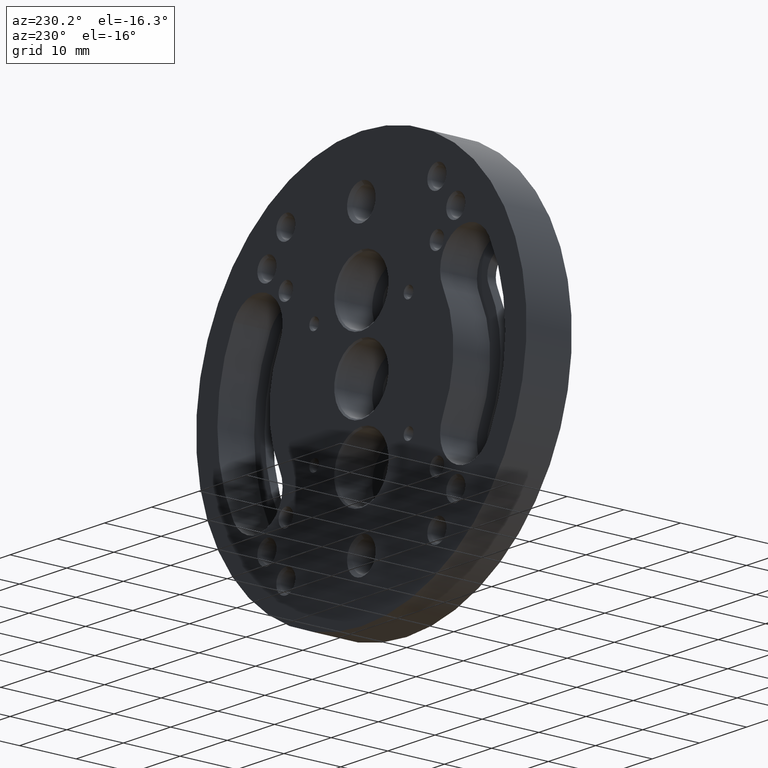
[diagram: clean part render]
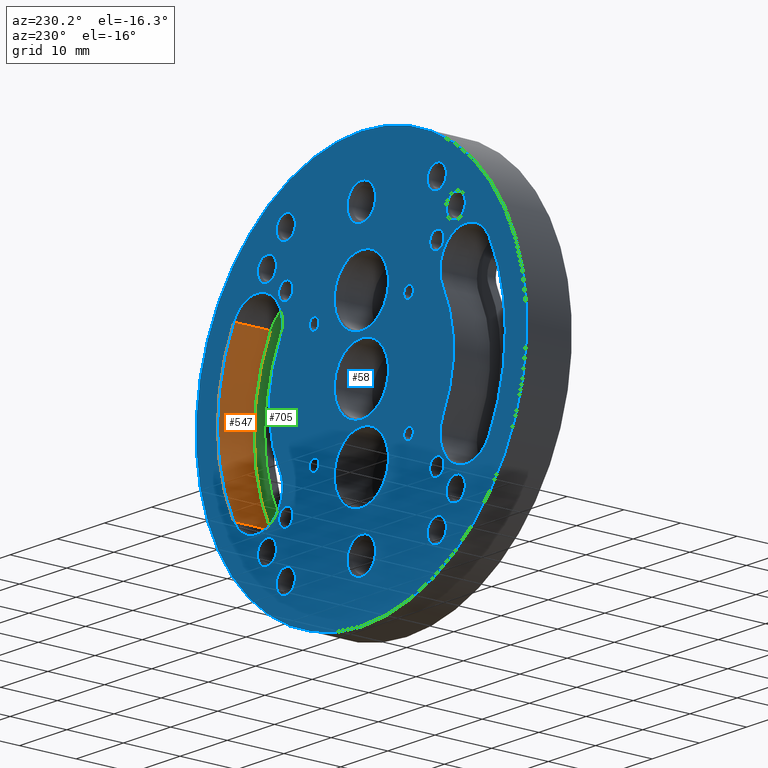
[diagram: same view with three faces highlighted in distinct colors, each labeled with its STEP entity id]
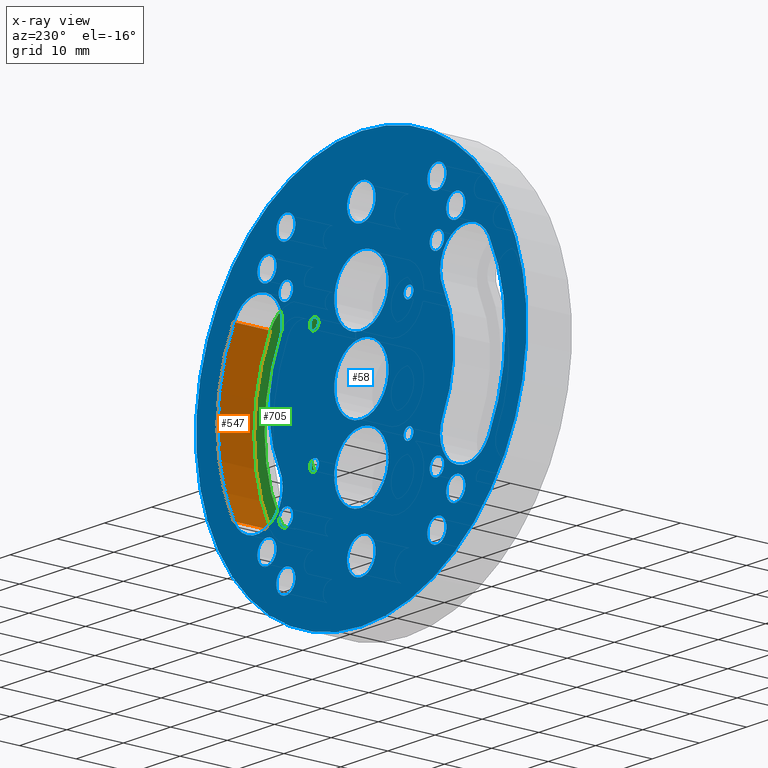
[diagram: x-ray of the same camera — body ghosted, the three highlighted faces saturated]
A machine part, auxiliary view with three faces highlighted in distinct colors.
The next image is the same camera in x-ray (body ghosted, the three faces saturated) — at least one of them is partly hidden behind the body in this view.
Their STEP definitions:

[orange] entity #547 — the highlighted cylindrical surface (partial cylindrical patch) has radius 30.5 mm, axis along (-0, 1, -0).
#191 = EDGE_CURVE ( 'NONE', #818, #650, #985, .T. ) ;
#228 = ORIENTED_EDGE ( 'NONE', *, *, #433, .F. ) ;
#268 = AXIS2_PLACEMENT_3D ( 'NONE', #649, #820, #325 ) ;
#278 = ORIENTED_EDGE ( 'NONE', *, *, #191, .T. ) ;
#325 = DIRECTION ( 'NONE',  ( 0.000000000000000000, 0.000000000000000000, 1.000000000000000000 ) ) ;
#387 = CARTESIAN_POINT ( 'NONE',  ( 27.05383041193573135, 8.000000000000000000, 14.08333270366857093 ) ) ;
#390 = EDGE_CURVE ( 'NONE', #650, #786, #1182, .T. ) ;
#398 = DIRECTION ( 'NONE',  ( -0.000000000000000000, 1.000000000000000000, -0.000000000000000000 ) ) ;
#433 = EDGE_CURVE ( 'NONE', #818, #1414, #1898, .T. ) ;
#542 = FACE_OUTER_BOUND ( 'NONE', #1151, .T. ) ;
#547 = ADVANCED_FACE ( 'NONE', ( #542 ), #1764, .F. ) ;
#552 = DIRECTION ( 'NONE',  ( 0.000000000000000000, 0.000000000000000000, 1.000000000000000000 ) ) ;
#612 = CARTESIAN_POINT ( 'NONE',  ( 27.05383041193573135, 1.500000000000000444, -14.08333270366857448 ) ) ;
#649 = CARTESIAN_POINT ( 'NONE',  ( 0.000000000000000000, 8.000000000000000000, 0.000000000000000000 ) ) ;
#650 = VERTEX_POINT ( 'NONE', #387 ) ;
#669 = DIRECTION ( 'NONE',  ( 0.000000000000000000, 0.000000000000000000, 1.000000000000000000 ) ) ;
#786 = VERTEX_POINT ( 'NONE', #1824 ) ;
#794 = EDGE_CURVE ( 'NONE', #1414, #786, #909, .T. ) ;
#818 = VERTEX_POINT ( 'NONE', #1413 ) ;
#820 = DIRECTION ( 'NONE',  ( 0.000000000000000000, 1.000000000000000000, 0.000000000000000000 ) ) ;
#821 = ORIENTED_EDGE ( 'NONE', *, *, #794, .F. ) ;
#909 = LINE ( 'NONE', #612, #1849 ) ;
#914 = VECTOR ( 'NONE', #1284, 1000.000000000000000 ) ;
#985 = LINE ( 'NONE', #1114, #914 ) ;
#1114 = CARTESIAN_POINT ( 'NONE',  ( 27.05383041193573490, 1.500000000000000444, 14.08333270366857093 ) ) ;
#1151 = EDGE_LOOP ( 'NONE', ( #1457, #821, #228, #278 ) ) ;
#1154 = AXIS2_PLACEMENT_3D ( 'NONE', #1257, #1415, #669 ) ;
#1182 = CIRCLE ( 'NONE', #268, 30.49999999999999289 ) ;
#1257 = CARTESIAN_POINT ( 'NONE',  ( 0.000000000000000000, 1.500000000000000444, 0.000000000000000000 ) ) ;
#1284 = DIRECTION ( 'NONE',  ( -0.000000000000000000, 1.000000000000000000, -0.000000000000000000 ) ) ;
#1413 = CARTESIAN_POINT ( 'NONE',  ( 27.05383041193573490, 1.500000000000000444, 14.08333270366857093 ) ) ;
#1414 = VERTEX_POINT ( 'NONE', #1566 ) ;
#1415 = DIRECTION ( 'NONE',  ( 0.000000000000000000, 1.000000000000000000, 0.000000000000000000 ) ) ;
#1457 = ORIENTED_EDGE ( 'NONE', *, *, #390, .T. ) ;
#1507 = DIRECTION ( 'NONE',  ( -0.000000000000000000, 1.000000000000000000, -0.000000000000000000 ) ) ;
#1566 = CARTESIAN_POINT ( 'NONE',  ( 27.05383041193573135, 1.500000000000000444, -14.08333270366857448 ) ) ;
#1747 = CARTESIAN_POINT ( 'NONE',  ( 0.000000000000000000, 1.500000000000000444, 0.000000000000000000 ) ) ;
#1764 = CYLINDRICAL_SURFACE ( 'NONE', #1765, 30.49999999999999289 ) ;
#1765 = AXIS2_PLACEMENT_3D ( 'NONE', #1747, #398, #552 ) ;
#1824 = CARTESIAN_POINT ( 'NONE',  ( 27.05383041193573135, 8.000000000000000000, -14.08333270366857448 ) ) ;
#1849 = VECTOR ( 'NONE', #1507, 1000.000000000000000 ) ;
#1898 = CIRCLE ( 'NONE', #1154, 30.49999999999999289 ) ;

[blue] entity #58 — the highlighted planar face has unit normal (0, 1, 0).
#5 = DIRECTION ( 'NONE',  ( 0.000000000000000000, 0.000000000000000000, 1.000000000000000000 ) ) ;
#8 = DIRECTION ( 'NONE',  ( 0.000000000000000000, 0.000000000000000000, 1.000000000000000000 ) ) ;
#10 = EDGE_LOOP ( 'NONE', ( #722 ) ) ;
#17 = CARTESIAN_POINT ( 'NONE',  ( -15.99999999999998934, 8.000000000000000000, 24.99999999999999645 ) ) ;
#44 = FACE_BOUND ( 'NONE', #423, .T. ) ;
#52 = VERTEX_POINT ( 'NONE', #1408 ) ;
#53 = FACE_BOUND ( 'NONE', #893, .T. ) ;
#58 = ADVANCED_FACE ( 'NONE', ( #928, #1251, #804, #321, #1399, #331, #1076, #181, #1368, #762, #1534, #172, #1873, #784, #1239, #44, #526, #259, #1565, #118, #53, #715, #725, #407 ), #1410, .T. ) ;
#59 = DIRECTION ( 'NONE',  ( 0.000000000000000000, 0.000000000000000000, 1.000000000000000000 ) ) ;
#72 = CARTESIAN_POINT ( 'NONE',  ( 16.00000000000000000, 8.000000000000000000, -22.97500000000000142 ) ) ;
#75 = AXIS2_PLACEMENT_3D ( 'NONE', #344, #961, #1584 ) ;
#76 = DIRECTION ( 'NONE',  ( -0.000000000000000000, 1.000000000000000000, -0.000000000000000000 ) ) ;
#80 = DIRECTION ( 'NONE',  ( -0.000000000000000000, 1.000000000000000000, -0.000000000000000000 ) ) ;
#84 = AXIS2_PLACEMENT_3D ( 'NONE', #835, #563, #964 ) ;
#90 = CIRCLE ( 'NONE', #1971, 2.024999999999999023 ) ;
#94 = VERTEX_POINT ( 'NONE', #212 ) ;
#98 = CIRCLE ( 'NONE', #897, 2.024999999999999023 ) ;
#102 = VERTEX_POINT ( 'NONE', #1046 ) ;
#118 = FACE_BOUND ( 'NONE', #1878, .T. ) ;
#129 = VERTEX_POINT ( 'NONE', #1456 ) ;
#136 = CIRCLE ( 'NONE', #1242, 2.024999999999999023 ) ;
#151 = EDGE_CURVE ( 'NONE', #52, #52, #460, .T. ) ;
#172 = FACE_BOUND ( 'NONE', #1880, .T. ) ;
#181 = FACE_BOUND ( 'NONE', #918, .T. ) ;
#183 = VERTEX_POINT ( 'NONE', #1020 ) ;
#187 = ORIENTED_EDGE ( 'NONE', *, *, #1219, .F. ) ;
#207 = EDGE_LOOP ( 'NONE', ( #1723 ) ) ;
#208 = DIRECTION ( 'NONE',  ( 0.000000000000000000, 1.000000000000000000, 0.000000000000000000 ) ) ;
#212 = CARTESIAN_POINT ( 'NONE',  ( -9.999999999999998224, 8.000000000000000000, 11.02499999999999858 ) ) ;
#216 = DIRECTION ( 'NONE',  ( 0.000000000000000000, 0.000000000000000000, 1.000000000000000000 ) ) ;
#229 = CARTESIAN_POINT ( 'NONE',  ( 10.00000000000000000, 8.000000000000000000, -8.975000000000001421 ) ) ;
#231 = EDGE_CURVE ( 'NONE', #589, #451, #688, .T. ) ;
#247 = ORIENTED_EDGE ( 'NONE', *, *, #458, .F. ) ;
#248 = CIRCLE ( 'NONE', #372, 2.024999999999999023 ) ;
#258 = DIRECTION ( 'NONE',  ( -0.000000000000000000, -1.000000000000000000, -0.000000000000000000 ) ) ;
#259 = FACE_BOUND ( 'NONE', #1333, .T. ) ;
#268 = AXIS2_PLACEMENT_3D ( 'NONE', #649, #820, #325 ) ;
#286 = ORIENTED_EDGE ( 'NONE', *, *, #390, .F. ) ;
#291 = CARTESIAN_POINT ( 'NONE',  ( -16.00000000000000000, 8.000000000000000000, 15.99999999999999289 ) ) ;
#293 = EDGE_CURVE ( 'NONE', #841, #1537, #1127, .T. ) ;
#295 = DIRECTION ( 'NONE',  ( 0.000000000000000000, 0.000000000000000000, 1.000000000000000000 ) ) ;
#296 = DIRECTION ( 'NONE',  ( 0.000000000000000000, 0.000000000000000000, 1.000000000000000000 ) ) ;
#305 = CARTESIAN_POINT ( 'NONE',  ( 16.00000000000000000, 8.000000000000000000, 15.99999999999999289 ) ) ;
#321 = FACE_BOUND ( 'NONE', #1016, .T. ) ;
#325 = DIRECTION ( 'NONE',  ( 0.000000000000000000, 0.000000000000000000, 1.000000000000000000 ) ) ;
#326 = ORIENTED_EDGE ( 'NONE', *, *, #553, .F. ) ;
#327 = CIRCLE ( 'NONE', #1502, 5.500000000000000000 ) ;
#331 = FACE_BOUND ( 'NONE', #1931, .T. ) ;
#335 = DIRECTION ( 'NONE',  ( 0.000000000000000000, 1.000000000000000000, 0.000000000000000000 ) ) ;
#344 = CARTESIAN_POINT ( 'NONE',  ( -9.999999999999998224, 8.000000000000000000, 9.999999999999998224 ) ) ;
#347 = EDGE_CURVE ( 'NONE', #1147, #1147, #515, .T. ) ;
#372 = AXIS2_PLACEMENT_3D ( 'NONE', #17, #1704, #816 ) ;
#382 = EDGE_CURVE ( 'NONE', #786, #841, #1340, .T. ) ;
#384 = EDGE_CURVE ( 'NONE', #389, #389, #136, .T. ) ;
#387 = CARTESIAN_POINT ( 'NONE',  ( 27.05383041193573135, 8.000000000000000000, 14.08333270366857093 ) ) ;
#389 = VERTEX_POINT ( 'NONE', #700 ) ;
#390 = EDGE_CURVE ( 'NONE', #650, #786, #1182, .T. ) ;
#393 = CARTESIAN_POINT ( 'NONE',  ( -22.17527082945552053, 8.000000000000000000, -11.54371533087588020 ) ) ;
#396 = VERTEX_POINT ( 'NONE', #229 ) ;
#405 = CARTESIAN_POINT ( 'NONE',  ( 6.938893903907228378E-15, 8.000000000000000000, 28.02499999999999858 ) ) ;
#407 = FACE_BOUND ( 'NONE', #1524, .T. ) ;
#413 = CARTESIAN_POINT ( 'NONE',  ( -17.29671124697530615, 8.000000000000000000, 9.004097958083184139 ) ) ;
#415 = ORIENTED_EDGE ( 'NONE', *, *, #384, .F. ) ;
#423 = EDGE_LOOP ( 'NONE', ( #415 ) ) ;
#429 = CARTESIAN_POINT ( 'NONE',  ( 10.00000000000000000, 8.000000000000000000, -10.00000000000000178 ) ) ;
#431 = CARTESIAN_POINT ( 'NONE',  ( 19.99999999999998934, 8.000000000000000000, -20.00000000000000711 ) ) ;
#435 = CARTESIAN_POINT ( 'NONE',  ( 16.00000000000000000, 8.000000000000000000, -25.00000000000000000 ) ) ;
#444 = DIRECTION ( 'NONE',  ( 0.000000000000000000, 0.000000000000000000, 1.000000000000000000 ) ) ;
#445 = DIRECTION ( 'NONE',  ( 0.000000000000000000, 0.000000000000000000, 1.000000000000000000 ) ) ;
#451 = VERTEX_POINT ( 'NONE', #1099 ) ;
#458 = EDGE_CURVE ( 'NONE', #1537, #650, #327, .T. ) ;
#460 = CIRCLE ( 'NONE', #84, 5.750000000000018652 ) ;
#470 = EDGE_CURVE ( 'NONE', #1260, #1260, #1370, .T. ) ;
#492 = EDGE_CURVE ( 'NONE', #94, #94, #843, .T. ) ;
#503 = DIRECTION ( 'NONE',  ( -0.000000000000000000, 1.000000000000000000, -0.000000000000000000 ) ) ;
#512 = DIRECTION ( 'NONE',  ( -0.000000000000000000, 1.000000000000000000, -0.000000000000000000 ) ) ;
#513 = EDGE_LOOP ( 'NONE', ( #1897 ) ) ;
#515 = CIRCLE ( 'NONE', #1632, 3.024999999999999911 ) ;
#522 = AXIS2_PLACEMENT_3D ( 'NONE', #1063, #586, #445 ) ;
#526 = FACE_BOUND ( 'NONE', #1159, .T. ) ;
#530 = ORIENTED_EDGE ( 'NONE', *, *, #1197, .F. ) ;
#543 = EDGE_CURVE ( 'NONE', #1927, #1927, #1434, .T. ) ;
#545 = CARTESIAN_POINT ( 'NONE',  ( 16.00000000000000355, 8.000000000000000000, 27.02499999999999858 ) ) ;
#548 = CARTESIAN_POINT ( 'NONE',  ( -20.00000000000001066, 8.000000000000000000, 19.99999999999999289 ) ) ;
#553 = EDGE_CURVE ( 'NONE', #1738, #1738, #1536, .T. ) ;
#555 = AXIS2_PLACEMENT_3D ( 'NONE', #737, #1336, #932 ) ;
#560 = ORIENTED_EDGE ( 'NONE', *, *, #382, .F. ) ;
#562 = DIRECTION ( 'NONE',  ( 0.000000000000000000, 0.000000000000000000, 1.000000000000000000 ) ) ;
#563 = DIRECTION ( 'NONE',  ( -0.000000000000000000, -1.000000000000000000, -0.000000000000000000 ) ) ;
#566 = CIRCLE ( 'NONE', #1264, 1.524999999999998579 ) ;
#570 = AXIS2_PLACEMENT_3D ( 'NONE', #1158, #703, #216 ) ;
#575 = CARTESIAN_POINT ( 'NONE',  ( 15.99999999999999289, 8.000000000000000000, -14.47500000000000853 ) ) ;
#583 = AXIS2_PLACEMENT_3D ( 'NONE', #1018, #1602, #1161 ) ;
#586 = DIRECTION ( 'NONE',  ( -0.000000000000000000, -1.000000000000000000, -0.000000000000000000 ) ) ;
#587 = VERTEX_POINT ( 'NONE', #1787 ) ;
#589 = VERTEX_POINT ( 'NONE', #1623 ) ;
#596 = AXIS2_PLACEMENT_3D ( 'NONE', #1863, #773, #1208 ) ;
#615 = EDGE_CURVE ( 'NONE', #811, #811, #894, .T. ) ;
#616 = EDGE_CURVE ( 'NONE', #971, #971, #666, .T. ) ;
#625 = ORIENTED_EDGE ( 'NONE', *, *, #788, .F. ) ;
#649 = CARTESIAN_POINT ( 'NONE',  ( 0.000000000000000000, 8.000000000000000000, 0.000000000000000000 ) ) ;
#650 = VERTEX_POINT ( 'NONE', #387 ) ;
#655 = EDGE_CURVE ( 'NONE', #1427, #1427, #1919, .T. ) ;
#666 = CIRCLE ( 'NONE', #1168, 1.024999999999999911 ) ;
#676 = ORIENTED_EDGE ( 'NONE', *, *, #1527, .F. ) ;
#686 = ORIENTED_EDGE ( 'NONE', *, *, #293, .F. ) ;
#688 = CIRCLE ( 'NONE', #555, 30.49999999999999289 ) ;
#692 = CARTESIAN_POINT ( 'NONE',  ( 6.938893903907228378E-15, 8.000000000000000000, 24.99999999999999645 ) ) ;
#696 = CARTESIAN_POINT ( 'NONE',  ( -10.00000000000000000, 8.000000000000000000, -8.975000000000001421 ) ) ;
#700 = CARTESIAN_POINT ( 'NONE',  ( -20.00000000000001066, 8.000000000000000000, -17.97500000000000853 ) ) ;
#703 = DIRECTION ( 'NONE',  ( -0.000000000000000000, 1.000000000000000000, -0.000000000000000000 ) ) ;
#708 = CARTESIAN_POINT ( 'NONE',  ( -20.00000000000001066, 8.000000000000000000, 22.02499999999999147 ) ) ;
#709 = DIRECTION ( 'NONE',  ( 0.000000000000000000, 0.000000000000000000, 1.000000000000000000 ) ) ;
#714 = DIRECTION ( 'NONE',  ( 0.000000000000000000, 0.000000000000000000, 1.000000000000000000 ) ) ;
#715 = FACE_BOUND ( 'NONE', #1165, .T. ) ;
#719 = AXIS2_PLACEMENT_3D ( 'NONE', #1153, #1906, #1135 ) ;
#722 = ORIENTED_EDGE ( 'NONE', *, *, #347, .F. ) ;
#725 = FACE_OUTER_BOUND ( 'NONE', #1835, .T. ) ;
#727 = CIRCLE ( 'NONE', #1487, 5.750000000000032863 ) ;
#731 = DIRECTION ( 'NONE',  ( -0.000000000000000000, 1.000000000000000000, -0.000000000000000000 ) ) ;
#732 = AXIS2_PLACEMENT_3D ( 'NONE', #305, #1662, #296 ) ;
#737 = CARTESIAN_POINT ( 'NONE',  ( 0.000000000000000000, 8.000000000000000000, 0.000000000000000000 ) ) ;
#753 = EDGE_LOOP ( 'NONE', ( #1233 ) ) ;
#759 = EDGE_CURVE ( 'NONE', #587, #587, #727, .T. ) ;
#762 = FACE_BOUND ( 'NONE', #1082, .T. ) ;
#765 = CIRCLE ( 'NONE', #570, 1.524999999999998579 ) ;
#773 = DIRECTION ( 'NONE',  ( -0.000000000000000000, -1.000000000000000000, -0.000000000000000000 ) ) ;
#784 = FACE_BOUND ( 'NONE', #1846, .T. ) ;
#786 = VERTEX_POINT ( 'NONE', #1824 ) ;
#788 = EDGE_CURVE ( 'NONE', #1190, #1190, #566, .T. ) ;
#789 = CIRCLE ( 'NONE', #596, 5.500000000000000000 ) ;
#791 = AXIS2_PLACEMENT_3D ( 'NONE', #393, #1910, #826 ) ;
#792 = EDGE_LOOP ( 'NONE', ( #530 ) ) ;
#804 = FACE_BOUND ( 'NONE', #207, .T. ) ;
#811 = VERTEX_POINT ( 'NONE', #1113 ) ;
#816 = DIRECTION ( 'NONE',  ( 0.000000000000000000, 0.000000000000000000, 1.000000000000000000 ) ) ;
#820 = DIRECTION ( 'NONE',  ( 0.000000000000000000, 1.000000000000000000, 0.000000000000000000 ) ) ;
#826 = DIRECTION ( 'NONE',  ( 0.000000000000000000, 0.000000000000000000, 1.000000000000000000 ) ) ;
#835 = CARTESIAN_POINT ( 'NONE',  ( 0.000000000000000000, 8.000000000000000000, 12.50000000000000000 ) ) ;
#837 = CARTESIAN_POINT ( 'NONE',  ( -16.00000000000000711, 8.000000000000000000, -16.00000000000000711 ) ) ;
#839 = VERTEX_POINT ( 'NONE', #1017 ) ;
#841 = VERTEX_POINT ( 'NONE', #1394 ) ;
#843 = CIRCLE ( 'NONE', #75, 1.024999999999999911 ) ;
#849 = VERTEX_POINT ( 'NONE', #696 ) ;
#861 = CARTESIAN_POINT ( 'NONE',  ( 10.00000000000000178, 8.000000000000000000, 9.999999999999998224 ) ) ;
#862 = VERTEX_POINT ( 'NONE', #708 ) ;
#870 = CARTESIAN_POINT ( 'NONE',  ( -16.00000000000000000, 8.000000000000000000, 17.52499999999999147 ) ) ;
#873 = AXIS2_PLACEMENT_3D ( 'NONE', #1289, #80, #1433 ) ;
#882 = VERTEX_POINT ( 'NONE', #1962 ) ;
#884 = DIRECTION ( 'NONE',  ( -0.000000000000000000, 1.000000000000000000, -0.000000000000000000 ) ) ;
#887 = CIRCLE ( 'NONE', #791, 5.500000000000000000 ) ;
#893 = EDGE_LOOP ( 'NONE', ( #1947 ) ) ;
#894 = CIRCLE ( 'NONE', #1657, 5.750000000000036415 ) ;
#897 = AXIS2_PLACEMENT_3D ( 'NONE', #431, #731, #5 ) ;
#905 = EDGE_CURVE ( 'NONE', #882, #882, #248, .T. ) ;
#918 = EDGE_LOOP ( 'NONE', ( #1727 ) ) ;
#928 = FACE_BOUND ( 'NONE', #1362, .T. ) ;
#932 = DIRECTION ( 'NONE',  ( 0.000000000000000000, 0.000000000000000000, 1.000000000000000000 ) ) ;
#940 = AXIS2_PLACEMENT_3D ( 'NONE', #1734, #952, #1717 ) ;
#952 = DIRECTION ( 'NONE',  ( 0.000000000000000000, 1.000000000000000000, 0.000000000000000000 ) ) ;
#953 = AXIS2_PLACEMENT_3D ( 'NONE', #837, #76, #1164 ) ;
#961 = DIRECTION ( 'NONE',  ( -0.000000000000000000, 1.000000000000000000, -0.000000000000000000 ) ) ;
#962 = ORIENTED_EDGE ( 'NONE', *, *, #231, .T. ) ;
#964 = DIRECTION ( 'NONE',  ( 0.000000000000000000, 0.000000000000000000, 1.000000000000000000 ) ) ;
#971 = VERTEX_POINT ( 'NONE', #1573 ) ;
#972 = CIRCLE ( 'NONE', #1572, 2.024999999999999023 ) ;
#989 = VERTEX_POINT ( 'NONE', #405 ) ;
#1004 = AXIS2_PLACEMENT_3D ( 'NONE', #1848, #208, #59 ) ;
#1014 = DIRECTION ( 'NONE',  ( -0.000000000000000000, 1.000000000000000000, -0.000000000000000000 ) ) ;
#1016 = EDGE_LOOP ( 'NONE', ( #1047 ) ) ;
#1017 = CARTESIAN_POINT ( 'NONE',  ( 19.99999999999999645, 8.000000000000000000, 22.02499999999999147 ) ) ;
#1018 = CARTESIAN_POINT ( 'NONE',  ( 16.00000000000000355, 8.000000000000000000, 24.99999999999999645 ) ) ;
#1020 = CARTESIAN_POINT ( 'NONE',  ( -17.29671124697530615, 8.000000000000000000, -9.004097958083184139 ) ) ;
#1022 = CIRCLE ( 'NONE', #732, 1.524999999999998579 ) ;
#1029 = CARTESIAN_POINT ( 'NONE',  ( 19.99999999999998934, 8.000000000000000000, -17.97500000000000853 ) ) ;
#1046 = CARTESIAN_POINT ( 'NONE',  ( -16.00000000000000711, 8.000000000000000000, -14.47500000000000675 ) ) ;
#1047 = ORIENTED_EDGE ( 'NONE', *, *, #151, .T. ) ;
#1054 = EDGE_CURVE ( 'NONE', #451, #183, #887, .T. ) ;
#1057 = DIRECTION ( 'NONE',  ( -0.000000000000000000, 1.000000000000000000, -0.000000000000000000 ) ) ;
#1063 = CARTESIAN_POINT ( 'NONE',  ( 0.000000000000000000, 8.000000000000000000, 0.000000000000000000 ) ) ;
#1076 = FACE_BOUND ( 'NONE', #1749, .T. ) ;
#1082 = EDGE_LOOP ( 'NONE', ( #1562 ) ) ;
#1086 = EDGE_CURVE ( 'NONE', #102, #102, #1810, .T. ) ;
#1090 = CARTESIAN_POINT ( 'NONE',  ( 22.17527082945552408, 8.000000000000000000, 11.54371533087588020 ) ) ;
#1093 = EDGE_CURVE ( 'NONE', #862, #862, #90, .T. ) ;
#1099 = CARTESIAN_POINT ( 'NONE',  ( -27.05383041193573135, 8.000000000000000000, -14.08333270366857448 ) ) ;
#1112 = EDGE_CURVE ( 'NONE', #1646, #1646, #765, .T. ) ;
#1113 = CARTESIAN_POINT ( 'NONE',  ( 0.000000000000000000, 8.000000000000000000, -6.749999999999964473 ) ) ;
#1120 = DIRECTION ( 'NONE',  ( 0.000000000000000000, 0.000000000000000000, 1.000000000000000000 ) ) ;
#1123 = CARTESIAN_POINT ( 'NONE',  ( -15.99999999999999645, 8.000000000000000000, -22.97500000000000497 ) ) ;
#1125 = DIRECTION ( 'NONE',  ( 0.000000000000000000, -0.000000000000000000, 1.000000000000000000 ) ) ;
#1127 = CIRCLE ( 'NONE', #522, 19.49999999999999645 ) ;
#1135 = DIRECTION ( 'NONE',  ( 0.000000000000000000, 0.000000000000000000, 1.000000000000000000 ) ) ;
#1147 = VERTEX_POINT ( 'NONE', #1759 ) ;
#1153 = CARTESIAN_POINT ( 'NONE',  ( -10.00000000000000000, 8.000000000000000000, -10.00000000000000178 ) ) ;
#1156 = CIRCLE ( 'NONE', #1831, 3.024999999999999911 ) ;
#1157 = CIRCLE ( 'NONE', #1439, 19.49999999999999645 ) ;
#1158 = CARTESIAN_POINT ( 'NONE',  ( 15.99999999999999289, 8.000000000000000000, -16.00000000000000711 ) ) ;
#1159 = EDGE_LOOP ( 'NONE', ( #1901 ) ) ;
#1161 = DIRECTION ( 'NONE',  ( 0.000000000000000000, 0.000000000000000000, 1.000000000000000000 ) ) ;
#1164 = DIRECTION ( 'NONE',  ( 0.000000000000000000, 0.000000000000000000, 1.000000000000000000 ) ) ;
#1165 = EDGE_LOOP ( 'NONE', ( #1259 ) ) ;
#1168 = AXIS2_PLACEMENT_3D ( 'NONE', #861, #1940, #562 ) ;
#1182 = CIRCLE ( 'NONE', #268, 30.49999999999999289 ) ;
#1190 = VERTEX_POINT ( 'NONE', #870 ) ;
#1191 = ORIENTED_EDGE ( 'NONE', *, *, #1679, .T. ) ;
#1197 = EDGE_CURVE ( 'NONE', #129, #129, #1022, .T. ) ;
#1199 = DIRECTION ( 'NONE',  ( -0.000000000000000000, -1.000000000000000000, -0.000000000000000000 ) ) ;
#1208 = DIRECTION ( 'NONE',  ( 0.000000000000000000, 0.000000000000000000, 1.000000000000000000 ) ) ;
#1219 = EDGE_CURVE ( 'NONE', #1935, #1935, #98, .T. ) ;
#1220 = ORIENTED_EDGE ( 'NONE', *, *, #1678, .F. ) ;
#1226 = CARTESIAN_POINT ( 'NONE',  ( 3.469446951953614189E-15, 8.000000000000000000, -25.00000000000000000 ) ) ;
#1227 = ORIENTED_EDGE ( 'NONE', *, *, #615, .T. ) ;
#1233 = ORIENTED_EDGE ( 'NONE', *, *, #1086, .F. ) ;
#1239 = FACE_BOUND ( 'NONE', #1653, .T. ) ;
#1242 = AXIS2_PLACEMENT_3D ( 'NONE', #1696, #512, #1395 ) ;
#1247 = CIRCLE ( 'NONE', #1834, 1.024999999999999911 ) ;
#1251 = FACE_BOUND ( 'NONE', #1953, .T. ) ;
#1259 = ORIENTED_EDGE ( 'NONE', *, *, #1093, .F. ) ;
#1260 = VERTEX_POINT ( 'NONE', #1449 ) ;
#1263 = CARTESIAN_POINT ( 'NONE',  ( 17.29671124697530615, 8.000000000000000000, 9.004097958083184139 ) ) ;
#1264 = AXIS2_PLACEMENT_3D ( 'NONE', #291, #1361, #8 ) ;
#1271 = ORIENTED_EDGE ( 'NONE', *, *, #492, .F. ) ;
#1276 = VERTEX_POINT ( 'NONE', #413 ) ;
#1289 = CARTESIAN_POINT ( 'NONE',  ( -15.99999999999999645, 8.000000000000000000, -25.00000000000000355 ) ) ;
#1327 = CARTESIAN_POINT ( 'NONE',  ( 0.000000000000000000, 8.000000000000000000, 0.000000000000000000 ) ) ;
#1333 = EDGE_LOOP ( 'NONE', ( #187 ) ) ;
#1336 = DIRECTION ( 'NONE',  ( -0.000000000000000000, -1.000000000000000000, -0.000000000000000000 ) ) ;
#1340 = CIRCLE ( 'NONE', #1004, 5.500000000000000000 ) ;
#1348 = DIRECTION ( 'NONE',  ( 0.000000000000000000, 0.000000000000000000, 1.000000000000000000 ) ) ;
#1361 = DIRECTION ( 'NONE',  ( -0.000000000000000000, 1.000000000000000000, -0.000000000000000000 ) ) ;
#1362 = EDGE_LOOP ( 'NONE', ( #247, #686, #560, #286 ) ) ;
#1368 = FACE_BOUND ( 'NONE', #1813, .T. ) ;
#1370 = CIRCLE ( 'NONE', #940, 35.00000000000000711 ) ;
#1394 = CARTESIAN_POINT ( 'NONE',  ( 17.29671124697530615, 8.000000000000000000, -9.004097958083184139 ) ) ;
#1395 = DIRECTION ( 'NONE',  ( 0.000000000000000000, 0.000000000000000000, 1.000000000000000000 ) ) ;
#1399 = FACE_BOUND ( 'NONE', #10, .T. ) ;
#1408 = CARTESIAN_POINT ( 'NONE',  ( 0.000000000000000000, 8.000000000000000000, 18.25000000000002132 ) ) ;
#1410 = PLANE ( 'NONE',  #1673 ) ;
#1427 = VERTEX_POINT ( 'NONE', #72 ) ;
#1431 = ORIENTED_EDGE ( 'NONE', *, *, #1054, .T. ) ;
#1433 = DIRECTION ( 'NONE',  ( 0.000000000000000000, 0.000000000000000000, 1.000000000000000000 ) ) ;
#1434 = CIRCLE ( 'NONE', #873, 2.024999999999999023 ) ;
#1439 = AXIS2_PLACEMENT_3D ( 'NONE', #1501, #1482, #1348 ) ;
#1449 = CARTESIAN_POINT ( 'NONE',  ( 0.000000000000000000, 8.000000000000000000, 35.00000000000000711 ) ) ;
#1451 = DIRECTION ( 'NONE',  ( 0.000000000000000000, 0.000000000000000000, 1.000000000000000000 ) ) ;
#1456 = CARTESIAN_POINT ( 'NONE',  ( 16.00000000000000000, 8.000000000000000000, 17.52499999999999147 ) ) ;
#1482 = DIRECTION ( 'NONE',  ( -0.000000000000000000, 1.000000000000000000, 0.000000000000000000 ) ) ;
#1487 = AXIS2_PLACEMENT_3D ( 'NONE', #1518, #1199, #1814 ) ;
#1501 = CARTESIAN_POINT ( 'NONE',  ( 0.000000000000000000, 8.000000000000000000, 0.000000000000000000 ) ) ;
#1502 = AXIS2_PLACEMENT_3D ( 'NONE', #1090, #335, #1120 ) ;
#1518 = CARTESIAN_POINT ( 'NONE',  ( 0.000000000000000000, 8.000000000000000000, 0.000000000000000000 ) ) ;
#1524 = EDGE_LOOP ( 'NONE', ( #1191, #1712, #962, #1431 ) ) ;
#1527 = EDGE_CURVE ( 'NONE', #989, #989, #1156, .T. ) ;
#1534 = FACE_BOUND ( 'NONE', #753, .T. ) ;
#1536 = CIRCLE ( 'NONE', #583, 2.024999999999999023 ) ;
#1537 = VERTEX_POINT ( 'NONE', #1263 ) ;
#1541 = DIRECTION ( 'NONE',  ( 0.000000000000000000, 0.000000000000000000, 1.000000000000000000 ) ) ;
#1556 = AXIS2_PLACEMENT_3D ( 'NONE', #435, #1683, #444 ) ;
#1562 = ORIENTED_EDGE ( 'NONE', *, *, #616, .F. ) ;
#1565 = FACE_BOUND ( 'NONE', #513, .T. ) ;
#1572 = AXIS2_PLACEMENT_3D ( 'NONE', #1780, #1057, #709 ) ;
#1573 = CARTESIAN_POINT ( 'NONE',  ( 10.00000000000000178, 8.000000000000000000, 11.02499999999999858 ) ) ;
#1584 = DIRECTION ( 'NONE',  ( 0.000000000000000000, 0.000000000000000000, 1.000000000000000000 ) ) ;
#1602 = DIRECTION ( 'NONE',  ( -0.000000000000000000, 1.000000000000000000, -0.000000000000000000 ) ) ;
#1623 = CARTESIAN_POINT ( 'NONE',  ( -27.05383041193573490, 8.000000000000000000, 14.08333270366857093 ) ) ;
#1632 = AXIS2_PLACEMENT_3D ( 'NONE', #1226, #503, #1541 ) ;
#1646 = VERTEX_POINT ( 'NONE', #575 ) ;
#1648 = CIRCLE ( 'NONE', #719, 1.024999999999999911 ) ;
#1653 = EDGE_LOOP ( 'NONE', ( #1916 ) ) ;
#1657 = AXIS2_PLACEMENT_3D ( 'NONE', #1903, #258, #714 ) ;
#1662 = DIRECTION ( 'NONE',  ( -0.000000000000000000, 1.000000000000000000, -0.000000000000000000 ) ) ;
#1673 = AXIS2_PLACEMENT_3D ( 'NONE', #1327, #1729, #1125 ) ;
#1678 = EDGE_CURVE ( 'NONE', #396, #396, #1247, .T. ) ;
#1679 = EDGE_CURVE ( 'NONE', #183, #1276, #1157, .T. ) ;
#1683 = DIRECTION ( 'NONE',  ( -0.000000000000000000, 1.000000000000000000, -0.000000000000000000 ) ) ;
#1696 = CARTESIAN_POINT ( 'NONE',  ( -20.00000000000001066, 8.000000000000000000, -20.00000000000000711 ) ) ;
#1704 = DIRECTION ( 'NONE',  ( -0.000000000000000000, 1.000000000000000000, -0.000000000000000000 ) ) ;
#1705 = EDGE_CURVE ( 'NONE', #839, #839, #972, .T. ) ;
#1712 = ORIENTED_EDGE ( 'NONE', *, *, #1892, .T. ) ;
#1717 = DIRECTION ( 'NONE',  ( 0.000000000000000000, 0.000000000000000000, 1.000000000000000000 ) ) ;
#1723 = ORIENTED_EDGE ( 'NONE', *, *, #759, .T. ) ;
#1727 = ORIENTED_EDGE ( 'NONE', *, *, #1944, .F. ) ;
#1729 = DIRECTION ( 'NONE',  ( 0.000000000000000000, 1.000000000000000000, 0.000000000000000000 ) ) ;
#1734 = CARTESIAN_POINT ( 'NONE',  ( 0.000000000000000000, 8.000000000000000000, 0.000000000000000000 ) ) ;
#1738 = VERTEX_POINT ( 'NONE', #545 ) ;
#1749 = EDGE_LOOP ( 'NONE', ( #1271 ) ) ;
#1759 = CARTESIAN_POINT ( 'NONE',  ( 3.469446951953614189E-15, 8.000000000000000000, -21.97500000000000142 ) ) ;
#1771 = DIRECTION ( 'NONE',  ( 0.000000000000000000, 0.000000000000000000, 1.000000000000000000 ) ) ;
#1773 = DIRECTION ( 'NONE',  ( -0.000000000000000000, 1.000000000000000000, -0.000000000000000000 ) ) ;
#1780 = CARTESIAN_POINT ( 'NONE',  ( 19.99999999999999645, 8.000000000000000000, 19.99999999999999289 ) ) ;
#1787 = CARTESIAN_POINT ( 'NONE',  ( 0.000000000000000000, 8.000000000000000000, 5.750000000000032863 ) ) ;
#1810 = CIRCLE ( 'NONE', #953, 1.525000000000000355 ) ;
#1813 = EDGE_LOOP ( 'NONE', ( #1220 ) ) ;
#1814 = DIRECTION ( 'NONE',  ( 0.000000000000000000, 0.000000000000000000, 1.000000000000000000 ) ) ;
#1824 = CARTESIAN_POINT ( 'NONE',  ( 27.05383041193573135, 8.000000000000000000, -14.08333270366857448 ) ) ;
#1831 = AXIS2_PLACEMENT_3D ( 'NONE', #692, #1014, #1771 ) ;
#1834 = AXIS2_PLACEMENT_3D ( 'NONE', #429, #884, #295 ) ;
#1835 = EDGE_LOOP ( 'NONE', ( #1859 ) ) ;
#1846 = EDGE_LOOP ( 'NONE', ( #625 ) ) ;
#1848 = CARTESIAN_POINT ( 'NONE',  ( 22.17527082945552053, 8.000000000000000000, -11.54371533087588020 ) ) ;
#1859 = ORIENTED_EDGE ( 'NONE', *, *, #470, .T. ) ;
#1863 = CARTESIAN_POINT ( 'NONE',  ( -22.17527082945552408, 8.000000000000000000, 11.54371533087588020 ) ) ;
#1873 = FACE_BOUND ( 'NONE', #792, .T. ) ;
#1878 = EDGE_LOOP ( 'NONE', ( #326 ) ) ;
#1880 = EDGE_LOOP ( 'NONE', ( #1923 ) ) ;
#1892 = EDGE_CURVE ( 'NONE', #1276, #589, #789, .T. ) ;
#1897 = ORIENTED_EDGE ( 'NONE', *, *, #1705, .F. ) ;
#1901 = ORIENTED_EDGE ( 'NONE', *, *, #655, .F. ) ;
#1903 = CARTESIAN_POINT ( 'NONE',  ( 0.000000000000000000, 8.000000000000000000, -12.50000000000000000 ) ) ;
#1906 = DIRECTION ( 'NONE',  ( -0.000000000000000000, 1.000000000000000000, -0.000000000000000000 ) ) ;
#1910 = DIRECTION ( 'NONE',  ( -0.000000000000000000, -1.000000000000000000, -0.000000000000000000 ) ) ;
#1916 = ORIENTED_EDGE ( 'NONE', *, *, #543, .F. ) ;
#1919 = CIRCLE ( 'NONE', #1556, 2.024999999999999023 ) ;
#1923 = ORIENTED_EDGE ( 'NONE', *, *, #1112, .F. ) ;
#1927 = VERTEX_POINT ( 'NONE', #1123 ) ;
#1931 = EDGE_LOOP ( 'NONE', ( #676 ) ) ;
#1935 = VERTEX_POINT ( 'NONE', #1029 ) ;
#1940 = DIRECTION ( 'NONE',  ( -0.000000000000000000, 1.000000000000000000, -0.000000000000000000 ) ) ;
#1944 = EDGE_CURVE ( 'NONE', #849, #849, #1648, .T. ) ;
#1947 = ORIENTED_EDGE ( 'NONE', *, *, #905, .F. ) ;
#1953 = EDGE_LOOP ( 'NONE', ( #1227 ) ) ;
#1962 = CARTESIAN_POINT ( 'NONE',  ( -15.99999999999998934, 8.000000000000000000, 27.02499999999999858 ) ) ;
#1971 = AXIS2_PLACEMENT_3D ( 'NONE', #548, #1773, #1451 ) ;

[green] entity #705 — the highlighted planar face has unit normal (0, 1, 0).
#2 = ORIENTED_EDGE ( 'NONE', *, *, #266, .F. ) ;
#6 = ORIENTED_EDGE ( 'NONE', *, *, #1468, .T. ) ;
#49 = ORIENTED_EDGE ( 'NONE', *, *, #348, .T. ) ;
#74 = DIRECTION ( 'NONE',  ( 0.000000000000000000, 0.000000000000000000, 1.000000000000000000 ) ) ;
#116 = PLANE ( 'NONE',  #1619 ) ;
#128 = CARTESIAN_POINT ( 'NONE',  ( 0.000000000000000000, 1.500000000000000444, 0.000000000000000000 ) ) ;
#156 = CARTESIAN_POINT ( 'NONE',  ( 11.08763541472776204, 1.500000000000000444, 5.771857665437940099 ) ) ;
#184 = CARTESIAN_POINT ( 'NONE',  ( 25.10240657894365768, 1.500000000000000444, 13.06748575455149819 ) ) ;
#186 = CIRCLE ( 'NONE', #1048, 3.300000000000004263 ) ;
#236 = CIRCLE ( 'NONE', #778, 5.500000000000000000 ) ;
#246 = EDGE_CURVE ( 'NONE', #1839, #1290, #656, .T. ) ;
#252 = CARTESIAN_POINT ( 'NONE',  ( 22.17527082945552408, 1.500000000000000444, 11.54371533087588020 ) ) ;
#266 = EDGE_CURVE ( 'NONE', #1290, #810, #1409, .T. ) ;
#329 = CARTESIAN_POINT ( 'NONE',  ( 19.24813507996739403, 1.500000000000000444, -10.01994490720026398 ) ) ;
#341 = EDGE_LOOP ( 'NONE', ( #6, #1073, #49, #1043 ) ) ;
#348 = EDGE_CURVE ( 'NONE', #1414, #1008, #236, .T. ) ;
#422 = CARTESIAN_POINT ( 'NONE',  ( 0.000000000000000000, 1.500000000000000444, 0.000000000000000000 ) ) ;
#433 = EDGE_CURVE ( 'NONE', #818, #1414, #1898, .T. ) ;
#450 = CARTESIAN_POINT ( 'NONE',  ( 22.17527082945552763, 1.500000000000000444, -11.54371533087587842 ) ) ;
#544 = ORIENTED_EDGE ( 'NONE', *, *, #671, .F. ) ;
#602 = CIRCLE ( 'NONE', #639, 19.49999999999999645 ) ;
#634 = DIRECTION ( 'NONE',  ( -0.000000000000000000, -1.000000000000000000, -0.000000000000000000 ) ) ;
#639 = AXIS2_PLACEMENT_3D ( 'NONE', #422, #634, #929 ) ;
#648 = CARTESIAN_POINT ( 'NONE',  ( 17.29671124697530615, 1.500000000000000444, 9.004097958083184139 ) ) ;
#656 = CIRCLE ( 'NONE', #1772, 21.69999999999999218 ) ;
#669 = DIRECTION ( 'NONE',  ( 0.000000000000000000, 0.000000000000000000, 1.000000000000000000 ) ) ;
#671 = EDGE_CURVE ( 'NONE', #1694, #1839, #186, .T. ) ;
#705 = ADVANCED_FACE ( 'NONE', ( #1497, #921 ), #116, .T. ) ;
#724 = DIRECTION ( 'NONE',  ( 0.000000000000000000, -0.000000000000000000, 1.000000000000000000 ) ) ;
#778 = AXIS2_PLACEMENT_3D ( 'NONE', #1569, #800, #980 ) ;
#800 = DIRECTION ( 'NONE',  ( 0.000000000000000000, 1.000000000000000000, 0.000000000000000000 ) ) ;
#810 = VERTEX_POINT ( 'NONE', #184 ) ;
#818 = VERTEX_POINT ( 'NONE', #1413 ) ;
#902 = ORIENTED_EDGE ( 'NONE', *, *, #246, .F. ) ;
#903 = EDGE_LOOP ( 'NONE', ( #2, #902, #544, #1783 ) ) ;
#907 = VERTEX_POINT ( 'NONE', #648 ) ;
#910 = CIRCLE ( 'NONE', #1570, 5.500000000000000000 ) ;
#921 = FACE_BOUND ( 'NONE', #903, .T. ) ;
#929 = DIRECTION ( 'NONE',  ( 0.000000000000000000, 0.000000000000000000, 1.000000000000000000 ) ) ;
#980 = DIRECTION ( 'NONE',  ( 0.000000000000000000, 0.000000000000000000, 1.000000000000000000 ) ) ;
#1008 = VERTEX_POINT ( 'NONE', #1599 ) ;
#1043 = ORIENTED_EDGE ( 'NONE', *, *, #1316, .T. ) ;
#1048 = AXIS2_PLACEMENT_3D ( 'NONE', #450, #1486, #1806 ) ;
#1053 = DIRECTION ( 'NONE',  ( 0.000000000000000000, 0.000000000000000000, 1.000000000000000000 ) ) ;
#1073 = ORIENTED_EDGE ( 'NONE', *, *, #433, .T. ) ;
#1137 = EDGE_CURVE ( 'NONE', #810, #1694, #1722, .T. ) ;
#1154 = AXIS2_PLACEMENT_3D ( 'NONE', #1257, #1415, #669 ) ;
#1163 = CARTESIAN_POINT ( 'NONE',  ( 25.10240657894365413, 1.500000000000000444, -13.06748575455150174 ) ) ;
#1200 = DIRECTION ( 'NONE',  ( -0.000000000000000000, -1.000000000000000000, -0.000000000000000000 ) ) ;
#1215 = CARTESIAN_POINT ( 'NONE',  ( 22.17527082945552053, 1.500000000000000444, 11.54371533087588020 ) ) ;
#1257 = CARTESIAN_POINT ( 'NONE',  ( 0.000000000000000000, 1.500000000000000444, 0.000000000000000000 ) ) ;
#1274 = DIRECTION ( 'NONE',  ( 0.000000000000000000, 1.000000000000000000, 0.000000000000000000 ) ) ;
#1290 = VERTEX_POINT ( 'NONE', #1812 ) ;
#1316 = EDGE_CURVE ( 'NONE', #1008, #907, #602, .T. ) ;
#1409 = CIRCLE ( 'NONE', #1474, 3.300000000000002487 ) ;
#1413 = CARTESIAN_POINT ( 'NONE',  ( 27.05383041193573490, 1.500000000000000444, 14.08333270366857093 ) ) ;
#1414 = VERTEX_POINT ( 'NONE', #1566 ) ;
#1415 = DIRECTION ( 'NONE',  ( 0.000000000000000000, 1.000000000000000000, 0.000000000000000000 ) ) ;
#1468 = EDGE_CURVE ( 'NONE', #907, #818, #910, .T. ) ;
#1474 = AXIS2_PLACEMENT_3D ( 'NONE', #1215, #1498, #1053 ) ;
#1486 = DIRECTION ( 'NONE',  ( 0.000000000000000000, 1.000000000000000000, 0.000000000000000000 ) ) ;
#1497 = FACE_OUTER_BOUND ( 'NONE', #341, .T. ) ;
#1498 = DIRECTION ( 'NONE',  ( 0.000000000000000000, 1.000000000000000000, 0.000000000000000000 ) ) ;
#1515 = DIRECTION ( 'NONE',  ( 0.000000000000000000, 0.000000000000000000, 1.000000000000000000 ) ) ;
#1566 = CARTESIAN_POINT ( 'NONE',  ( 27.05383041193573135, 1.500000000000000444, -14.08333270366857448 ) ) ;
#1569 = CARTESIAN_POINT ( 'NONE',  ( 22.17527082945552053, 1.500000000000000444, -11.54371533087588020 ) ) ;
#1570 = AXIS2_PLACEMENT_3D ( 'NONE', #252, #1274, #74 ) ;
#1599 = CARTESIAN_POINT ( 'NONE',  ( 17.29671124697530615, 1.500000000000000444, -9.004097958083184139 ) ) ;
#1609 = DIRECTION ( 'NONE',  ( 0.000000000000000000, 1.000000000000000000, 0.000000000000000000 ) ) ;
#1619 = AXIS2_PLACEMENT_3D ( 'NONE', #156, #1656, #724 ) ;
#1656 = DIRECTION ( 'NONE',  ( 0.000000000000000000, 1.000000000000000000, 0.000000000000000000 ) ) ;
#1658 = DIRECTION ( 'NONE',  ( 0.000000000000000000, 0.000000000000000000, 1.000000000000000000 ) ) ;
#1694 = VERTEX_POINT ( 'NONE', #1163 ) ;
#1722 = CIRCLE ( 'NONE', #1785, 28.30000000000000071 ) ;
#1761 = CARTESIAN_POINT ( 'NONE',  ( 0.000000000000000000, 1.500000000000000444, 0.000000000000000000 ) ) ;
#1772 = AXIS2_PLACEMENT_3D ( 'NONE', #128, #1200, #1658 ) ;
#1783 = ORIENTED_EDGE ( 'NONE', *, *, #1137, .F. ) ;
#1785 = AXIS2_PLACEMENT_3D ( 'NONE', #1761, #1609, #1515 ) ;
#1806 = DIRECTION ( 'NONE',  ( 0.000000000000000000, 0.000000000000000000, 1.000000000000000000 ) ) ;
#1812 = CARTESIAN_POINT ( 'NONE',  ( 19.24813507996739048, 1.500000000000000444, 10.01994490720026221 ) ) ;
#1839 = VERTEX_POINT ( 'NONE', #329 ) ;
#1898 = CIRCLE ( 'NONE', #1154, 30.49999999999999289 ) ;